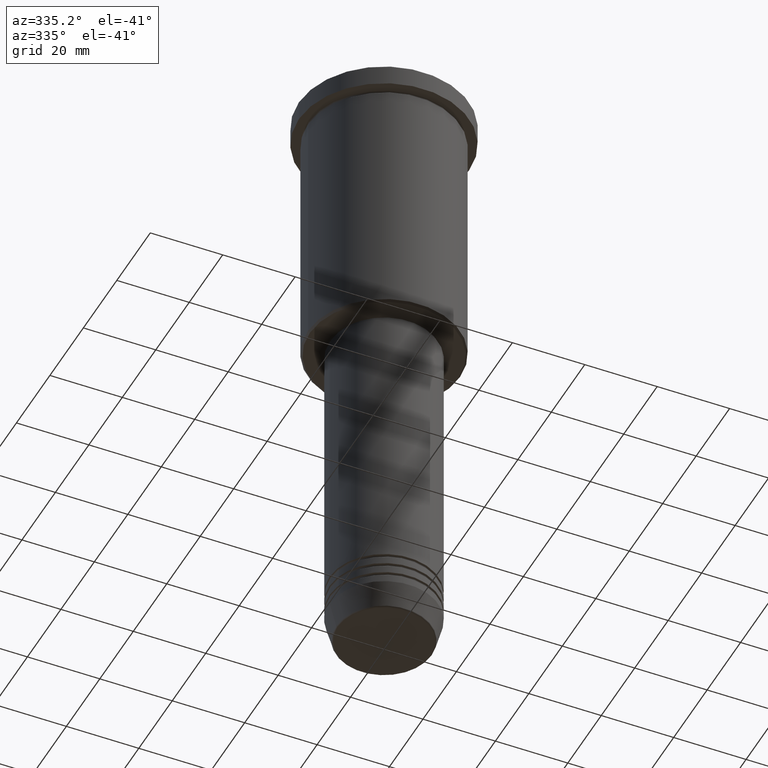
[diagram: clean part render]
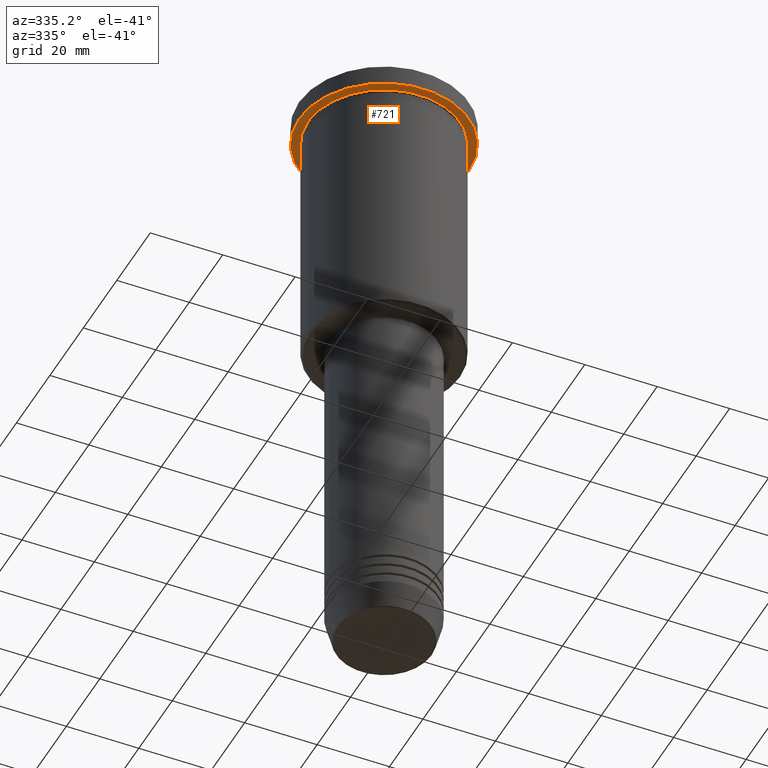
[diagram: same view with one face highlighted and labeled with its STEP entity id]
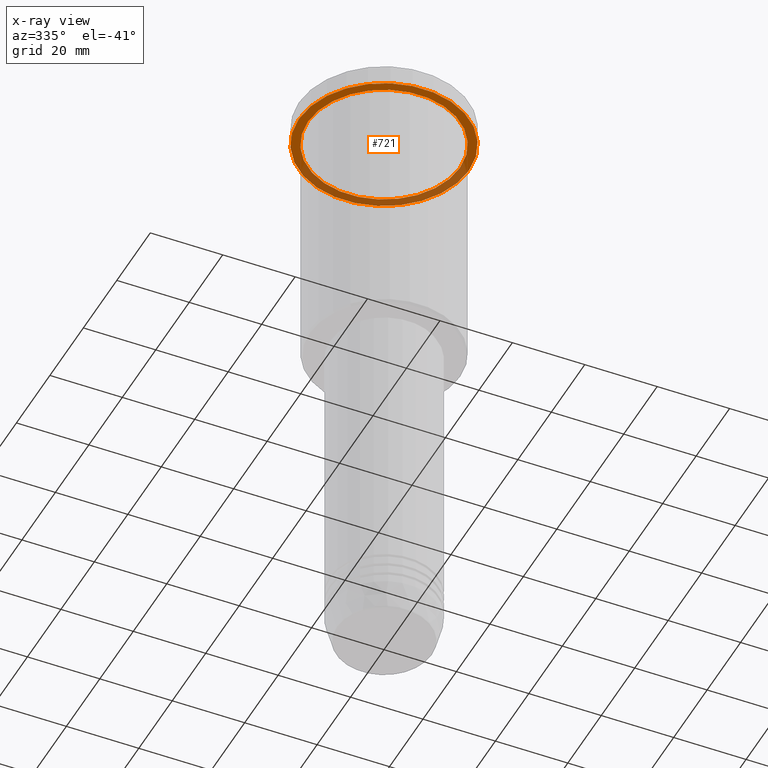
[diagram: x-ray of the same camera — body ghosted, the highlighted face saturated]
A machine part, auxiliary view. The second image highlights one B-rep face of the part: STEP entity #721.
The next image is the same camera in x-ray: the body ghosted, the highlighted face saturated — about 37% of this face is hidden behind the body in this view.
In plain terms, the highlighted planar face has unit normal (0, 0, -1).
Its self-contained STEP definition (entity closure, byte-faithful):
#11 = DIRECTION ( 'NONE',  ( 1.000000000000000000, 0.000000000000000000, 0.000000000000000000 ) ) ;
#45 = EDGE_CURVE ( 'NONE', #95, #646, #88, .T. ) ;
#66 = ORIENTED_EDGE ( 'NONE', *, *, #458, .F. ) ;
#74 = CARTESIAN_POINT ( 'NONE',  ( -21.00000000000000000, 0.000000000000000000, -5.999999999999994671 ) ) ;
#84 = DIRECTION ( 'NONE',  ( 0.000000000000000000, 0.000000000000000000, -1.000000000000000000 ) ) ;
#87 = ORIENTED_EDGE ( 'NONE', *, *, #45, .F. ) ;
#88 = CIRCLE ( 'NONE', #752, 23.50000000000000000 ) ;
#95 = VERTEX_POINT ( 'NONE', #233 ) ;
#129 = AXIS2_PLACEMENT_3D ( 'NONE', #1105, #551, #11 ) ;
#176 = CARTESIAN_POINT ( 'NONE',  ( 0.000000000000000000, 0.000000000000000000, -5.999999999999994671 ) ) ;
#204 = AXIS2_PLACEMENT_3D ( 'NONE', #982, #84, #606 ) ;
#233 = CARTESIAN_POINT ( 'NONE',  ( 23.50000000000000000, 0.000000000000000000, -5.999999999999994671 ) ) ;
#250 = ORIENTED_EDGE ( 'NONE', *, *, #513, .T. ) ;
#298 = AXIS2_PLACEMENT_3D ( 'NONE', #176, #730, #626 ) ;
#308 = EDGE_LOOP ( 'NONE', ( #634, #250 ) ) ;
#373 = FACE_OUTER_BOUND ( 'NONE', #940, .T. ) ;
#458 = EDGE_CURVE ( 'NONE', #646, #95, #864, .T. ) ;
#508 = CIRCLE ( 'NONE', #1171, 21.00000000000000000 ) ;
#513 = EDGE_CURVE ( 'NONE', #719, #675, #508, .T. ) ;
#545 = CARTESIAN_POINT ( 'NONE',  ( -23.50000000000000000, 2.877919977996280320E-15, -5.999999999999994671 ) ) ;
#551 = DIRECTION ( 'NONE',  ( -0.000000000000000000, -0.000000000000000000, 1.000000000000000000 ) ) ;
#606 = DIRECTION ( 'NONE',  ( -1.000000000000000000, 0.000000000000000000, -0.000000000000000000 ) ) ;
#626 = DIRECTION ( 'NONE',  ( -1.000000000000000000, 0.000000000000000000, 0.000000000000000000 ) ) ;
#634 = ORIENTED_EDGE ( 'NONE', *, *, #705, .T. ) ;
#646 = VERTEX_POINT ( 'NONE', #545 ) ;
#675 = VERTEX_POINT ( 'NONE', #74 ) ;
#705 = EDGE_CURVE ( 'NONE', #675, #719, #902, .T. ) ;
#716 = DIRECTION ( 'NONE',  ( -1.000000000000000000, 0.000000000000000000, 0.000000000000000000 ) ) ;
#717 = PLANE ( 'NONE',  #204 ) ;
#719 = VERTEX_POINT ( 'NONE', #1067 ) ;
#721 = ADVANCED_FACE ( 'NONE', ( #819, #373 ), #717, .T. ) ;
#727 = CARTESIAN_POINT ( 'NONE',  ( 0.000000000000000000, 0.000000000000000000, -5.999999999999994671 ) ) ;
#729 = DIRECTION ( 'NONE',  ( -0.000000000000000000, -0.000000000000000000, 1.000000000000000000 ) ) ;
#730 = DIRECTION ( 'NONE',  ( -0.000000000000000000, -0.000000000000000000, 1.000000000000000000 ) ) ;
#739 = CARTESIAN_POINT ( 'NONE',  ( 0.000000000000000000, 0.000000000000000000, -5.999999999999994671 ) ) ;
#752 = AXIS2_PLACEMENT_3D ( 'NONE', #727, #1009, #1069 ) ;
#819 = FACE_BOUND ( 'NONE', #308, .T. ) ;
#864 = CIRCLE ( 'NONE', #129, 23.50000000000000000 ) ;
#902 = CIRCLE ( 'NONE', #298, 21.00000000000000000 ) ;
#940 = EDGE_LOOP ( 'NONE', ( #87, #66 ) ) ;
#982 = CARTESIAN_POINT ( 'NONE',  ( 0.000000000000000000, 23.50000000000000000, -5.999999999999994671 ) ) ;
#1009 = DIRECTION ( 'NONE',  ( -0.000000000000000000, -0.000000000000000000, 1.000000000000000000 ) ) ;
#1067 = CARTESIAN_POINT ( 'NONE',  ( 21.00000000000000000, 2.571758278209441661E-15, -5.999999999999994671 ) ) ;
#1069 = DIRECTION ( 'NONE',  ( 1.000000000000000000, 0.000000000000000000, 0.000000000000000000 ) ) ;
#1105 = CARTESIAN_POINT ( 'NONE',  ( 0.000000000000000000, 0.000000000000000000, -5.999999999999994671 ) ) ;
#1171 = AXIS2_PLACEMENT_3D ( 'NONE', #739, #729, #716 ) ;